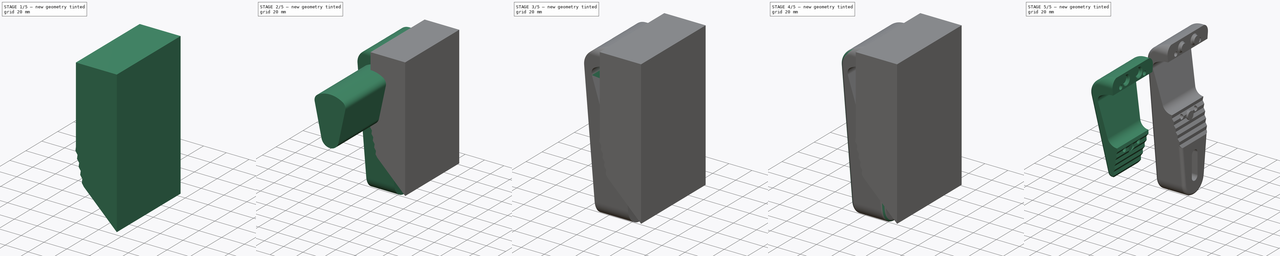
[diagram: build sequence overview — one tinted view per stage of 5, left to right]
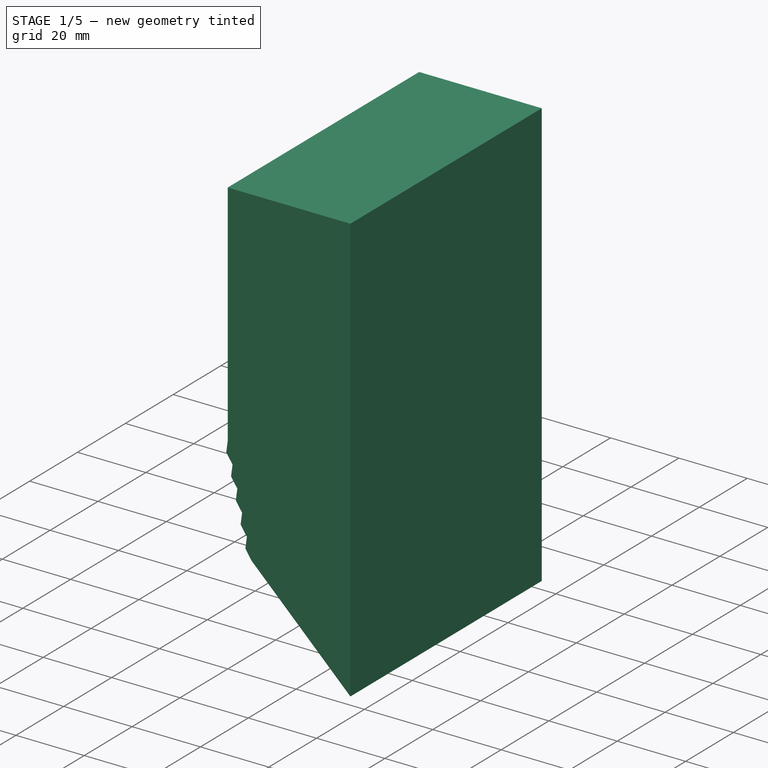
[diagram: stage 1 of 5 — iso view after this stage's code; geometry added in this stage tinted green]
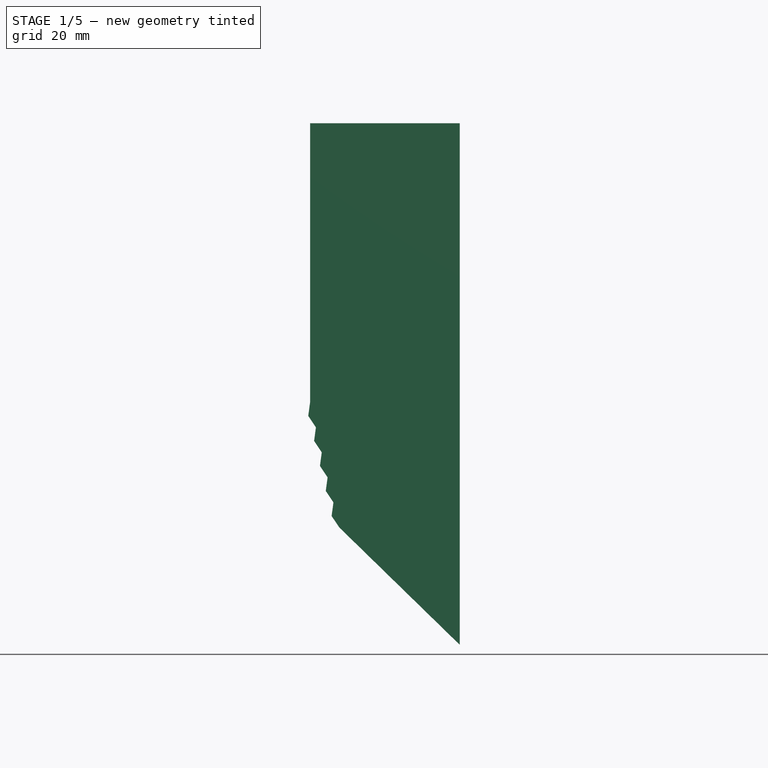
[diagram: stage 1 of 5 — front view after this stage's code; geometry added in this stage tinted green]
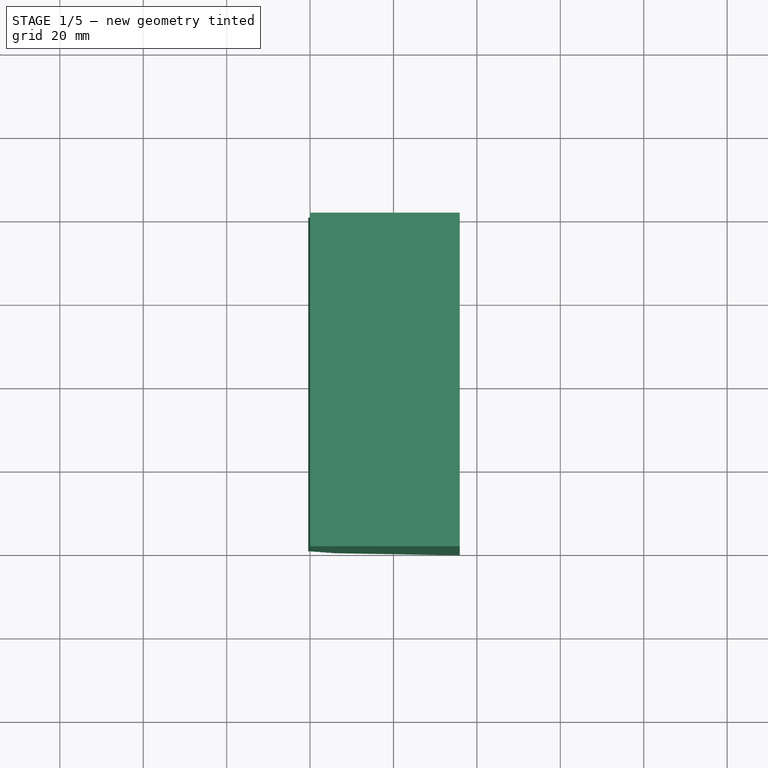
[diagram: stage 1 of 5 — top view after this stage's code; geometry added in this stage tinted green]
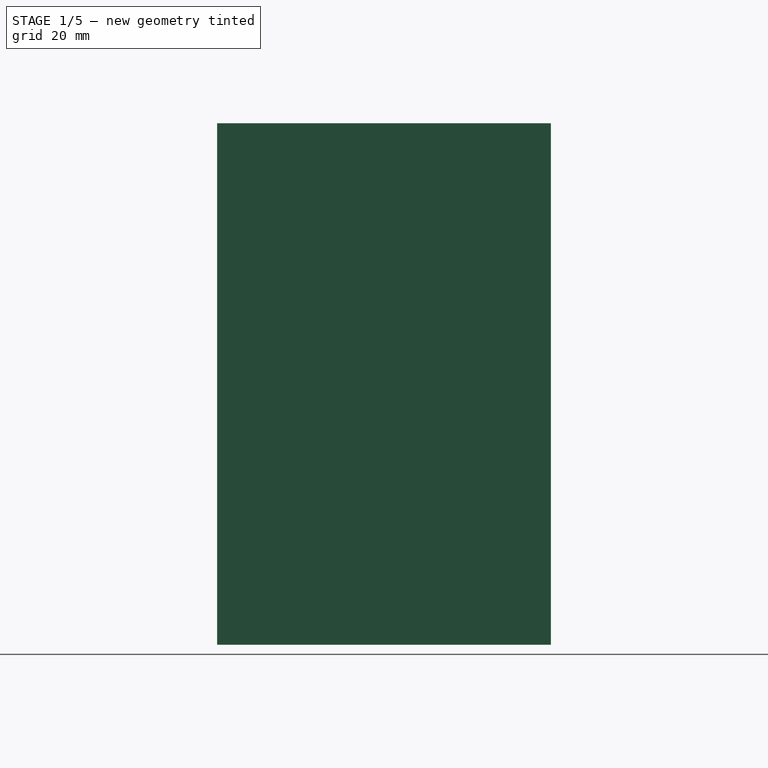
[diagram: stage 1 of 5 — right view after this stage's code; geometry added in this stage tinted green]
FCSTD DOCUMENT  (FreeCAD 0.20R28647 (Git))
Label: ello-center-wheel-mount
License: All rights reserved
LicenseURL: http://en.wikipedia.org/wiki/All_rights_reserved
objects: Sketcher::SketchObject×8, PartDesign::Pocket×5, PartDesign::Body×4, PartDesign::Pad×3, Part::FeaturePython×3, Part::Cut×1, PartDesign::FeatureBase×1, PartDesign::Fillet×1, PartDesign::Chamfer×1, App::DocumentObjectGroup×1
note: 37 computed .brp shape members not serialized (recipe doc carries the construction recipe); baked Part::Feature solids carry a one-line shape summary decoded from their .brp

FEATURE [PartDesign::Body] Body002  label="Mount"
  BaseFeature = -> Cut
  Group = -> [BaseFeature,Sketch003,Pocket001,Sketch004,Pocket002,Sketch005,Pocket003,Fillet]
  Origin = -> Origin002
  Tip = -> Fillet
FEATURE [Sketcher::SketchObject] Sketch006
  FullyConstrained = false
  MapMode = 5
  Placement = pos=(0,0,0) rot=(1,0,0;1.5708rad)
  Support = -> [XZ_Plane003]
  sketch-geometry (16):
    g0: LineSegment StartX=35.8843 StartY=66.9189 StartZ=0 EndX=0 EndY=66.9189 EndZ=0
    g1: LineSegment StartX=0 StartY=66.9189 StartZ=0 EndX=0 EndY=0 EndZ=0
    g2: LineSegment StartX=0 StartY=0 StartZ=0 EndX=7 EndY=-30 EndZ=0
    g3: LineSegment StartX=7 StartY=-30 StartZ=0 EndX=35.8843 EndY=-58.1385 EndZ=0
    g4: LineSegment StartX=35.8843 StartY=-58.1385 StartZ=0 EndX=35.8843 EndY=66.9189 EndZ=0
    g5: LineSegment StartX=0 StartY=0 StartZ=0 EndX=-0.43804 EndY=-3.26554 EndZ=0
    g6: LineSegment StartX=-0.43804 StartY=-3.26554 StartZ=0 EndX=1.4 EndY=-6 EndZ=0
    g7: LineSegment StartX=1.4 StartY=-6 StartZ=0 EndX=0.96196 EndY=-9.26554 EndZ=0
    g8: LineSegment StartX=0.96196 StartY=-9.26554 StartZ=0 EndX=2.8 EndY=-12 EndZ=0
    g9: LineSegment StartX=2.8 StartY=-12 StartZ=0 EndX=2.36196 EndY=-15.2655 EndZ=0
    g10: LineSegment StartX=2.36196 StartY=-15.2655 StartZ=0 EndX=4.2 EndY=-18 EndZ=0
    g11: LineSegment StartX=4.2 StartY=-18 StartZ=0 EndX=3.76196 EndY=-21.2655 EndZ=0
    g12: LineSegment StartX=3.76196 StartY=-21.2655 StartZ=0 EndX=5.6 EndY=-24 EndZ=0
    g13: LineSegment StartX=5.6 StartY=-24 StartZ=0 EndX=5.16196 EndY=-27.2655 EndZ=0
    g14: LineSegment StartX=5.69191 StartY=-29.5367 StartZ=0 EndX=-1.2 EndY=0 EndZ=0
    g15: LineSegment StartX=5.16196 StartY=-27.2655 StartZ=0 EndX=7 EndY=-30 EndZ=0
  constraints (43):
    c: PointOnObject(g0,g-2)
    c: Horizontal(g0)
    c: Coincident(g0,g1)
    c: Coincident(g1,g-1)
    c: Coincident(g1,g2)
    c: Coincident(g3,g4)
    c: Coincident(g4,g0)
    c: Vertical(g4)
    c: DistanceX(g2) = 7
    c: DistanceY(g2) = -30
    c: Coincident(g1,g5)
    c: Coincident(g5,g6)
    c: Coincident(g6,g7)
    c: Coincident(g7,g8)
    c: Coincident(g8,g9)
    c: Coincident(g9,g10)
    c: Coincident(g10,g11)
    c: Coincident(g11,g12)
    c: Coincident(g12,g13)
    c: Equal(g13,g12)
    c: Equal(g12,g11)
    c: Equal(g11,g10)
    c: Equal(g10,g9)
    c: Equal(g9,g8)
    c: Equal(g8,g7)
    c: Equal(g7,g6)
    c: Equal(g6,g5)
    c: Parallel(g2,g14)
    c: PointOnObject(g5,g14)
    c: PointOnObject(g7,g14)
    c: PointOnObject(g9,g14)
    c: PointOnObject(g11,g14)
    c: Coincident(g3,g2)
    c: Coincident(g15,g13)
    c: Coincident(g15,g3)
    c: PointOnObject(g13,g14)
    c: Equal(g13,g15)
    c: PointOnObject(g10,g2)
    c: PointOnObject(g12,g2)
    c: PointOnObject(g8,g2)
    c: PointOnObject(g6,g2)
    c: PointOnObject(g14,g-1)
    c: DistanceX(g14) = -1.2
FEATURE [PartDesign::Pad] Pad002  label="Profile001"
  Direction = (0,-1,2e-16)
  Length = 80
  Length2 = 10
  Midplane = true
  Placement = pos=(0,0,0) rot=(1,0,0;1.5708rad)
  Profile = -> Sketch006
  ReferenceAxis = -> Sketch006 [N_Axis]
  Type = 0
FEATURE [Sketcher::SketchObject] Sketch007
  FullyConstrained = true
  MapMode = 5
  Placement = pos=(0,0,0) rot=(0.57735,0.57735,0.57735;2.0944rad)
  Support = -> [YZ_Plane003]
  sketch-geometry (3):
    g0: Circle CenterX=-9 CenterY=57 CenterZ=0 NormalX=0 NormalY=0 NormalZ=1 AngleXU=0 Radius=4
    g1: Circle CenterX=9 CenterY=57 CenterZ=0 NormalX=0 NormalY=0 NormalZ=1 AngleXU=0 Radius=4
    g2: Circle CenterX=0 CenterY=-8 CenterZ=0 NormalX=0 NormalY=0 NormalZ=1 AngleXU=0 Radius=4
  constraints (8):
    c: Symmetric(g0,g1,g-2)
    c: Equal(g0,g1)
    c: Diameter(g0) = 8
    c: DistanceX(g1) = 9
    c: DistanceY(g1) = 57
    c: PointOnObject(g2,g-2)
    c: Equal(g2,g1)
    c: DistanceY(g2) = -8
FEATURE [PartDesign::Pocket] Pocket004  label="Index-pins"
  BaseFeature = -> Pad002
  Direction = (-1,2e-16,-3e-16)
  Length = 3
  Length2 = 5
  Placement = pos=(0,0,0) rot=(1,0,0;1.5708rad)
  Profile = -> Sketch007
  ReferenceAxis = -> Sketch007 [N_Axis]
  Reversed = true
  Type = 0
FEATURE [PartDesign::Chamfer] Chamfer
  Angle = 45
  Base = -> Pocket004 [Edge11,Edge12]
  BaseFeature = -> Pocket004
  ChamferType = 0
  FlipDirection = false
  Placement = pos=(0,0,0) rot=(1,0,0;1.5708rad)
  Size = 1
  Size2 = 1
  SupportTransform = false
  UseAllEdges = false
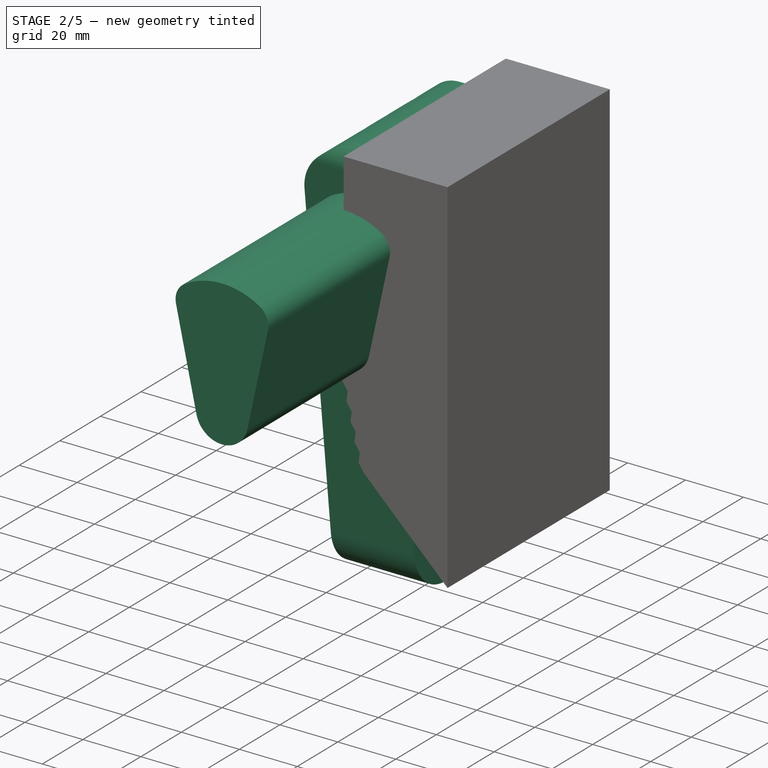
[diagram: stage 2 of 5 — iso view after this stage's code; geometry added in this stage tinted green]
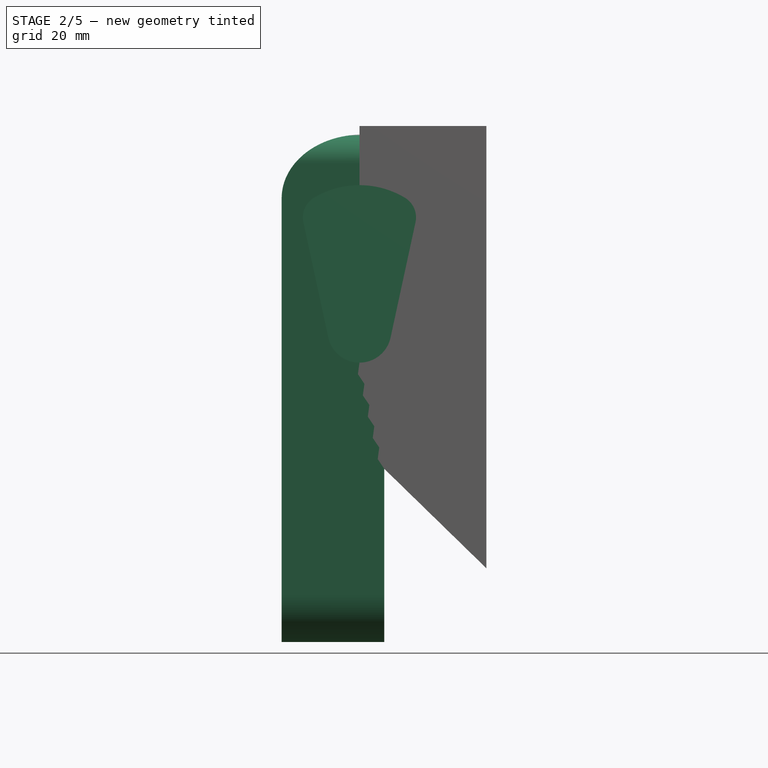
[diagram: stage 2 of 5 — front view after this stage's code; geometry added in this stage tinted green]
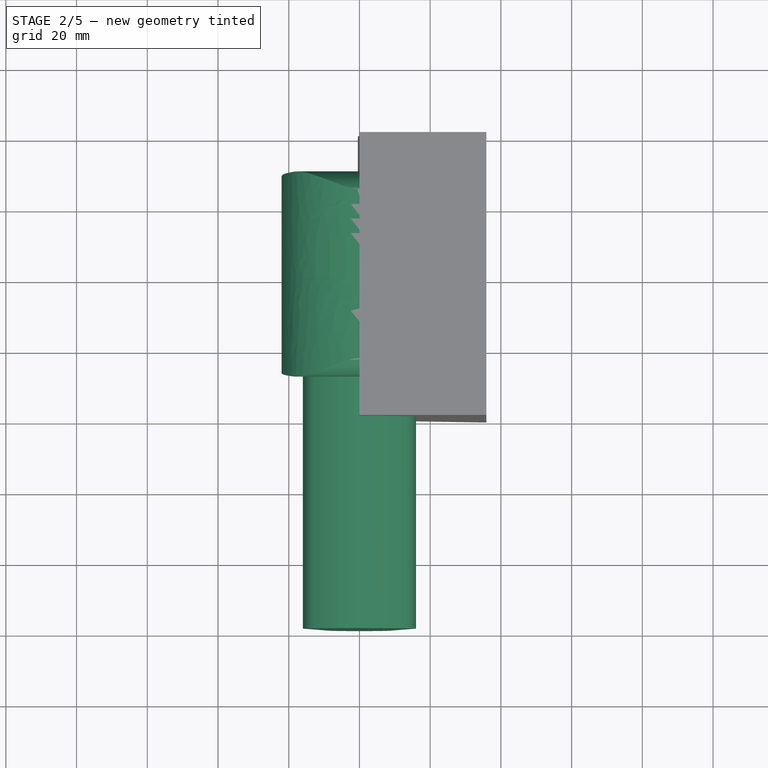
[diagram: stage 2 of 5 — top view after this stage's code; geometry added in this stage tinted green]
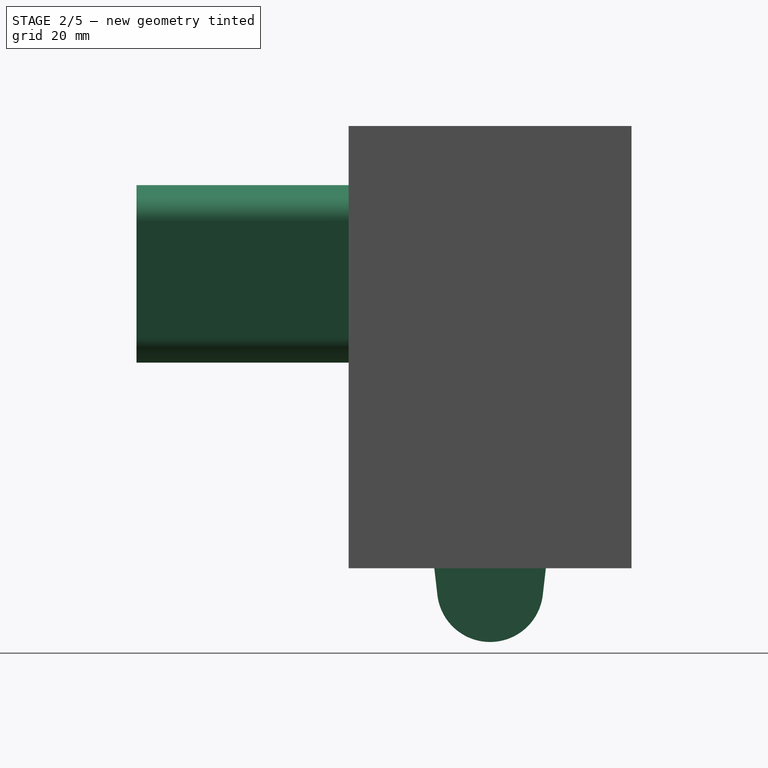
[diagram: stage 2 of 5 — right view after this stage's code; geometry added in this stage tinted green]
FEATURE [Sketcher::SketchObject] Sketch  label="beam-profile"
  FullyConstrained = true
  MapMode = 5
  Placement = pos=(0,0,0) rot=(1,0,0;1.5708rad)
  Support = -> [XZ_Plane]
  sketch-geometry (12):
    g0: LineSegment StartX=-15.8529 StartY=39.6995 StartZ=0 EndX=-8.79633 EndY=7.09615 EndZ=0
    g1: LineSegment StartX=8.79633 StartY=7.09615 StartZ=0 EndX=15.8529 EndY=39.6995 EndZ=0
    g2: GeomPoint X=0 Y=50.2 Z=0
    g3: GeomPoint X=0 Y=0 Z=0
    g4: ArcOfCircle CenterX=-9.5 CenterY=41.0745 CenterZ=0 NormalX=0 NormalY=0 NormalZ=1 AngleXU=0 Radius=6.5 StartAngle=2.11007 EndAngle=3.35474
    g5: ArcOfCircle CenterX=9.5 CenterY=41.0745 CenterZ=0 NormalX=0 NormalY=0 NormalZ=1 AngleXU=0 Radius=6.5 StartAngle=6.07004 EndAngle=7.31471
    g6: ArcOfCircle CenterX=0 CenterY=25.2 CenterZ=0 NormalX=0 NormalY=0 NormalZ=1 AngleXU=0 Radius=25 StartAngle=1.03152 EndAngle=2.11007
    g7: LineSegment StartX=-16 StartY=50.2 StartZ=0 EndX=16 EndY=50.2 EndZ=0
    g8: LineSegment StartX=16 StartY=50.2 StartZ=0 EndX=16 EndY=0 EndZ=0
    g9: LineSegment StartX=16 StartY=0 StartZ=0 EndX=-16 EndY=0 EndZ=0
    g10: LineSegment StartX=-16 StartY=0 StartZ=0 EndX=-16 EndY=50.2 EndZ=0
    g11: ArcOfCircle CenterX=0 CenterY=9 CenterZ=0 NormalX=0 NormalY=0 NormalZ=1 AngleXU=0 Radius=9 StartAngle=3.35474 EndAngle=6.07004
  constraints (32):
    c: DistanceY(g3,g2) = 50.2
    c: Angle(g1,g0) = 0.426299
    c: DistanceX(g0,g1) = 17.5927
    c: Coincident(g3,g-1)
    c: PointOnObject(g6,g-2)
    c: Symmetric(g4,g5,g-2)
    c: Tangent(g4,g0) = -1.5708
    c: Tangent(g6,g4) = -1.5708
    c: PointOnObject(g2,g6)
    c: Coincident(g7,g8)
    c: Coincident(g8,g9)
    c: Coincident(g9,g10)
    c: Coincident(g10,g7)
    c: Horizontal(g7)
    c: Horizontal(g9)
    c: Vertical(g8)
    c: Vertical(g10)
    c: PointOnObject(g8,g-1)
    c: PointOnObject(g2,g7)
    c: Tangent(g5,g8)
    c: Tangent(g10,g4)
    c: DistanceX(g7,g7) = 32
    c: Tangent(g6,g5) = -1.5708
    c: Tangent(g5,g1) = -1.5708
    c: Radius(g5) = 6.5
    c: Radius(g6) = 25
    c: PointOnObject(g11,g-2)
    c: Tangent(g11,g1) = -1.5708
    c: Tangent(g11,g0) = -1.5708
    c: PointOnObject(g3,g11)
    c: PointOnObject(g2,g-2)
    c: Radius(g11) = 9
FEATURE [PartDesign::Pad] Pad
  Direction = (0,-1,-2e-16)
  Length = 100
  Length2 = 10
  Placement = pos=(0,0,0) rot=(1,0,0;1.5708rad)
  Profile = -> Sketch
  ReferenceAxis = -> Sketch [N_Axis]
  Type = 0
FEATURE [PartDesign::Body] Body  label="Beam"
  Group = -> [Sketch,Pad]
  Origin = -> Origin
  Placement = pos=(0,50,0) rot=(1,0,0;0rad)
  Tip = -> Pad
FEATURE [Sketcher::SketchObject] Sketch001
  FullyConstrained = false
  MapMode = 5
  Placement = pos=(0,0,0) rot=(1,0,0;1.5708rad)
  Support = -> [XZ_Plane001]
  sketch-geometry (16):
    g0: LineSegment StartX=0 StartY=-54 StartZ=0 EndX=-22 EndY=-54 EndZ=0
    g1: LineSegment StartX=-22 StartY=-80 StartZ=0 EndX=-22 EndY=46.5 EndZ=0
    g2: LineSegment StartX=23.3234 StartY=44.2618 StartZ=0 EndX=12.096 EndY=-26.6257 EndZ=0
    g3: LineSegment StartX=8.1452 StartY=-30 StartZ=0 EndX=7 EndY=-30 EndZ=0
    g4: LineSegment StartX=7 StartY=-30 StartZ=0 EndX=7 EndY=-80 EndZ=0
    g5: LineSegment StartX=7 StartY=-80 StartZ=0 EndX=-22 EndY=-80 EndZ=0
    g6: ArcOfEllipse CenterX=0.75 CenterY=46.5 CenterZ=0 NormalX=0 NormalY=0 NormalZ=1 MajorRadius=22.75 MinorRadius=18 AngleXU=0 StartAngle=6.15852 EndAngle=9.42478
    g7: LineSegment StartX=23.5 StartY=46.5 StartZ=0 EndX=-22 EndY=46.5 EndZ=0
    g8: LineSegment StartX=0.75 StartY=64.5 StartZ=0 EndX=0.75 EndY=28.5 EndZ=0
    g9: GeomPoint X=14.6627 Y=46.5 Z=0
    g10: GeomPoint X=-13.1627 Y=46.5 Z=0
    g11: ArcOfCircle CenterX=8.1452 CenterY=-26 CenterZ=0 NormalX=0 NormalY=0 NormalZ=1 AngleXU=0 Radius=4 StartAngle=4.71239 EndAngle=6.12611
    g12: GeomPoint X=11.5615 Y=-30 Z=0
    g13: LineSegment StartX=22.2444 StartY=37.4493 StartZ=0 EndX=16.3183 EndY=38.3879 EndZ=0
    g14: LineSegment StartX=0 StartY=64.4902 StartZ=0 EndX=0 EndY=58.4902 EndZ=0
    g15: LineSegment StartX=-22 StartY=41.042 StartZ=0 EndX=-16 EndY=41.042 EndZ=0
  constraints (38):
    c: PointOnObject(g0,g-2)
    c: Horizontal(g0)
    c: DistanceX(g0,g0) = 22
    c: DistanceY(g0) = -54
    c: Vertical(g1)
    c: Horizontal(g3)
    c: Coincident(g3,g4)
    c: Vertical(g4)
    c: Coincident(g4,g5)
    c: Coincident(g5,g1)
    c: Horizontal(g5)
    c: InternalAlignment(g7-g10 -> g6) x4
    c: Horizontal(g7)
    c: Tangent(g1,g6) = 1.5708
    c: PointOnObject(g0,g1)
    c: Tangent(g6,g2) = 1.5708
    c: PointOnObject(g12,g2)
    c: PointOnObject(g12,g3)
    c: Tangent(g2,g11) = 1.5708
    c: Tangent(g3,g11) = 1.5708
    c: Angle(g2) = -1.72788
    c: PointOnObject(g13,g2)
    c: Perpendicular(g13,g2)
    c: Distance(g13) = 6
    c: PointOnObject(g14,g6)
    c: Vertical(g14)
    c: Equal(g14,g13)
    c: PointOnObject(g15,g1)
    c: Horizontal(g15)
    c: Equal(g15,g14)
    c: Radius(g11) = 4
    c: DistanceY(g3) = -30
    c: DistanceX(g6) = 0.75
    c: DistanceY(g6) = 46.5
    c: DistanceY(g8,g8) = 36
    c: DistanceY(g4) = -80
    c: PointOnObject(g14,g-2)
    c: DistanceX(g3) = 7
FEATURE [PartDesign::Pad] Pad001  label="Profile"
  Direction = (0,-1,-2e-16)
  Length = 80
  Length2 = 10
  Midplane = true
  Placement = pos=(0,0,0) rot=(1,0,0;1.5708rad)
  Profile = -> Sketch001
  ReferenceAxis = -> Sketch001 [N_Axis]
  Type = 0
FEATURE [Sketcher::SketchObject] Sketch002
  FullyConstrained = false
  MapMode = 5
  Placement = pos=(0,0,0) rot=(0.57735,0.57735,0.57735;2.0944rad)
  Support = -> [YZ_Plane001]
  sketch-geometry (17):
    g0: LineSegment StartX=-63.8896 StartY=86.8997 StartZ=0 EndX=68.5998 EndY=86.8997 EndZ=0
    g1: LineSegment StartX=68.5998 StartY=86.8997 StartZ=0 EndX=68.5998 EndY=-100.679 EndZ=0
    g2: LineSegment StartX=68.5998 StartY=-100.679 StartZ=0 EndX=-63.8896 EndY=-100.679 EndZ=0
    g3: LineSegment StartX=-63.8896 StartY=-100.679 StartZ=0 EndX=-63.8896 EndY=86.8997 EndZ=0
    g4: LineSegment StartX=21.0228 StartY=65 StartZ=0 EndX=-21.0228 EndY=65 EndZ=0
    g5: LineSegment StartX=-28.9699 StartY=56.0821 StartZ=0 EndX=-14.9009 EndY=-65.7211 EndZ=0
    g6: LineSegment StartX=14.9009 StartY=-65.7211 StartZ=0 EndX=28.9699 EndY=56.0821 EndZ=0
    g7: ArcOfCircle CenterX=21.0228 CenterY=57 CenterZ=0 NormalX=0 NormalY=0 NormalZ=1 AngleXU=0 Radius=8 StartAngle=6.16819 EndAngle=7.85398
    g8: GeomPoint X=30 Y=65 Z=0
    g9: ArcOfCircle CenterX=-21.0228 CenterY=57 CenterZ=0 NormalX=0 NormalY=0 NormalZ=1 AngleXU=0 Radius=8 StartAngle=1.5708 EndAngle=3.25659
    g10: GeomPoint X=-30 Y=65 Z=0
    g11: ArcOfCircle CenterX=9e-16 CenterY=-64 CenterZ=0 NormalX=0 NormalY=0 NormalZ=1 AngleXU=0 Radius=15 StartAngle=3.25659 EndAngle=6.16819
    g12: GeomPoint X=0 Y=-194.727 Z=0
    g13: ArcOfCircle CenterX=0 CenterY=-44 CenterZ=0 NormalX=0 NormalY=0 NormalZ=1 AngleXU=0 Radius=4 StartAngle=0 EndAngle=3.14159
    g14: ArcOfCircle CenterX=9e-16 CenterY=-64 CenterZ=0 NormalX=0 NormalY=0 NormalZ=1 AngleXU=0 Radius=4 StartAngle=3.14159 EndAngle=6.28319
    g15: LineSegment StartX=-4 StartY=-44 StartZ=0 EndX=-4 EndY=-64 EndZ=0
    g16: LineSegment StartX=4 StartY=-64 StartZ=0 EndX=4 EndY=-44 EndZ=0
  constraints (37):
    c: Coincident(g0,g1)
    c: Coincident(g1,g2)
    c: Coincident(g2,g3)
    c: Coincident(g3,g0)
    c: Horizontal(g0)
    c: Horizontal(g2)
    c: Vertical(g1)
    c: Vertical(g3)
    c: Horizontal(g4)
    c: PointOnObject(g12,g-2)
    c: DistanceY(g8) = 65
    c: DistanceX(g10,g8) = 60
    c: PointOnObject(g8,g4)
    c: PointOnObject(g8,g6)
    c: Tangent(g4,g7) = -1.5708
    c: Tangent(g6,g7) = -1.5708
    c: PointOnObject(g10,g4)
    c: PointOnObject(g10,g5)
    c: Tangent(g4,g9) = -1.5708
    c: Tangent(g5,g9) = -1.5708
    c: PointOnObject(g12,g5)
    c: PointOnObject(g12,g6)
    c: Tangent(g5,g11) = -1.5708
    c: Tangent(g6,g11) = -1.5708
    c: Radius(g7) = 8
    c: Symmetric(g9,g7,g-2)
    c: Tangent(g13,g15) = -1.5708
    c: Tangent(g15,g14) = -1.5708
    c: Tangent(g14,g16) = -1.5708
    c: Tangent(g16,g13) = -1.5708
    c: Equal(g13,g14)
    c: PointOnObject(g13,g-2)
    c: Diameter(g13) = 8
    c: DistanceY(g16,g16) = 20
    c: DistanceY(g13) = -44
    c: Coincident(g11,g14)
    c: Diameter(g11) = 30
FEATURE [PartDesign::Pocket] Pocket  label="wedge-shape"
  BaseFeature = -> Pad001
  Direction = (-1,2e-16,-3e-16)
  Length = 60
  Length2 = 5
  Midplane = true
  Placement = pos=(0,0,0) rot=(1,0,0;1.5708rad)
  Profile = -> Sketch002
  ReferenceAxis = -> Sketch002 [N_Axis]
  Type = 0
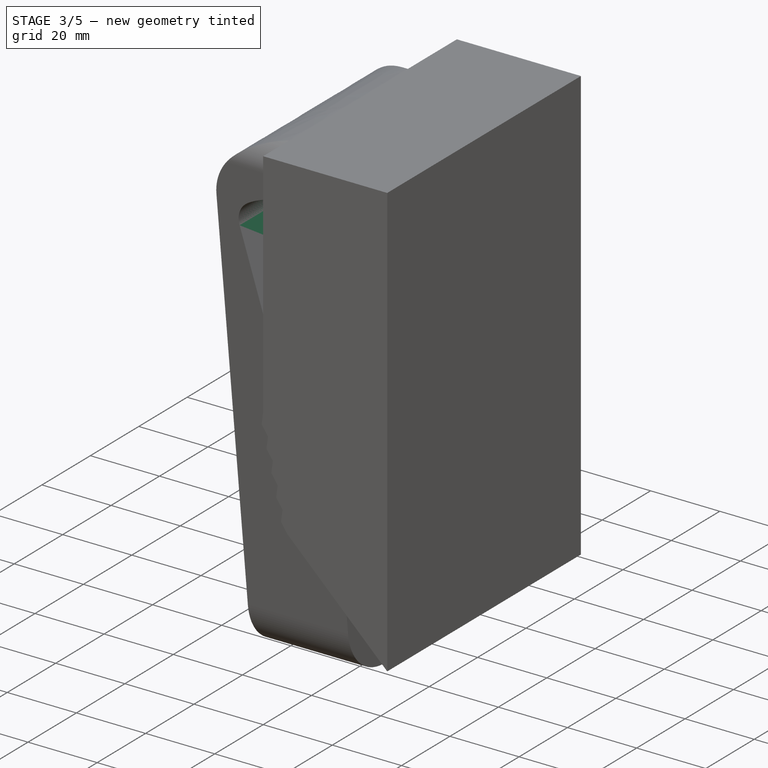
[diagram: stage 3 of 5 — iso view after this stage's code; geometry added in this stage tinted green]
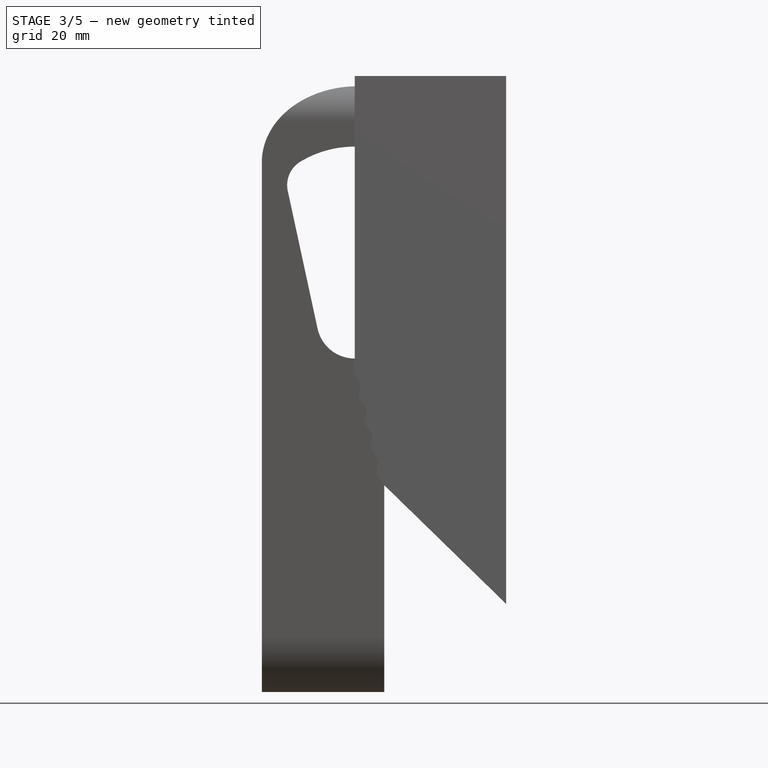
[diagram: stage 3 of 5 — front view after this stage's code; geometry added in this stage tinted green]
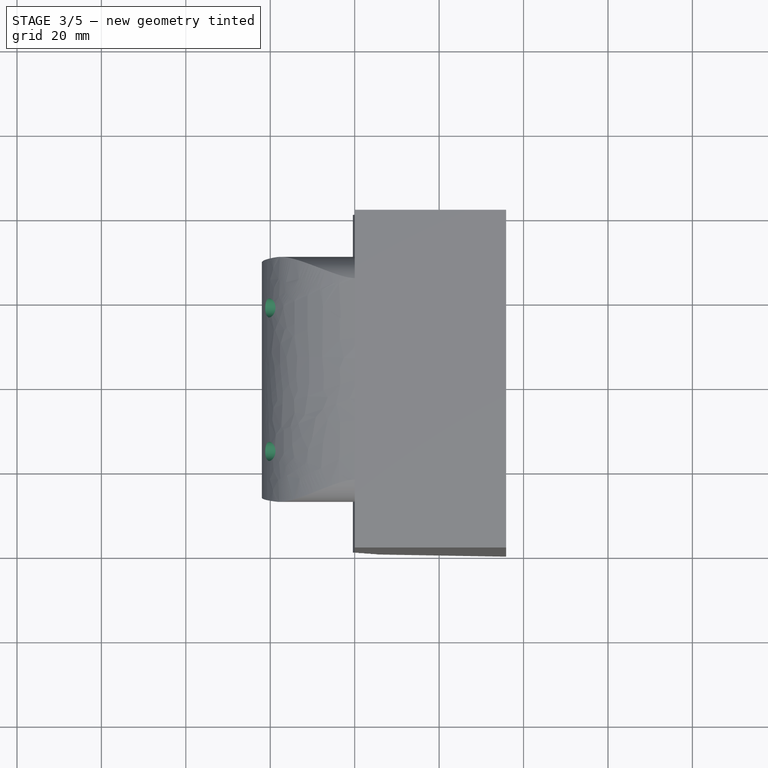
[diagram: stage 3 of 5 — top view after this stage's code; geometry added in this stage tinted green]
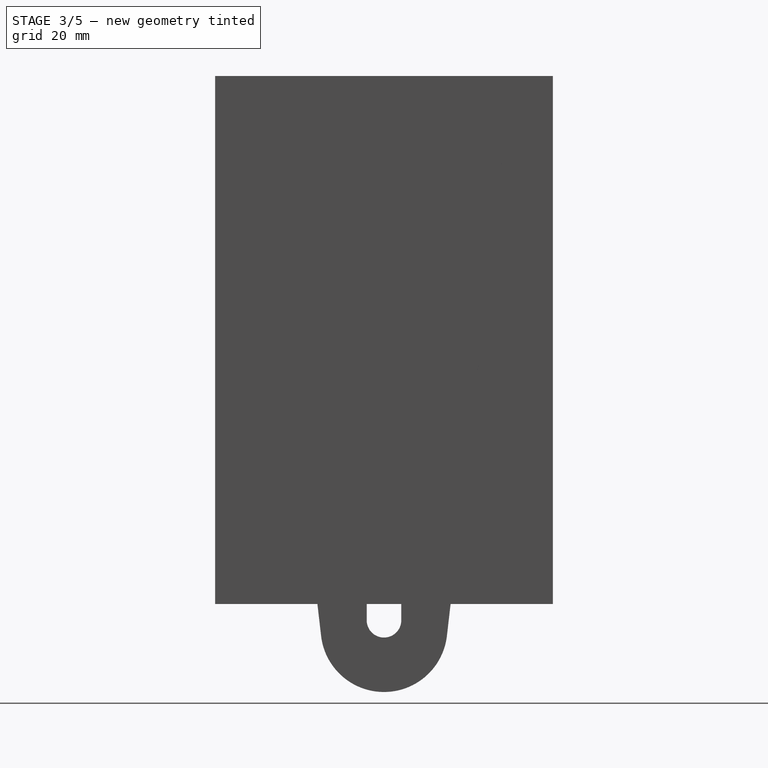
[diagram: stage 3 of 5 — right view after this stage's code; geometry added in this stage tinted green]
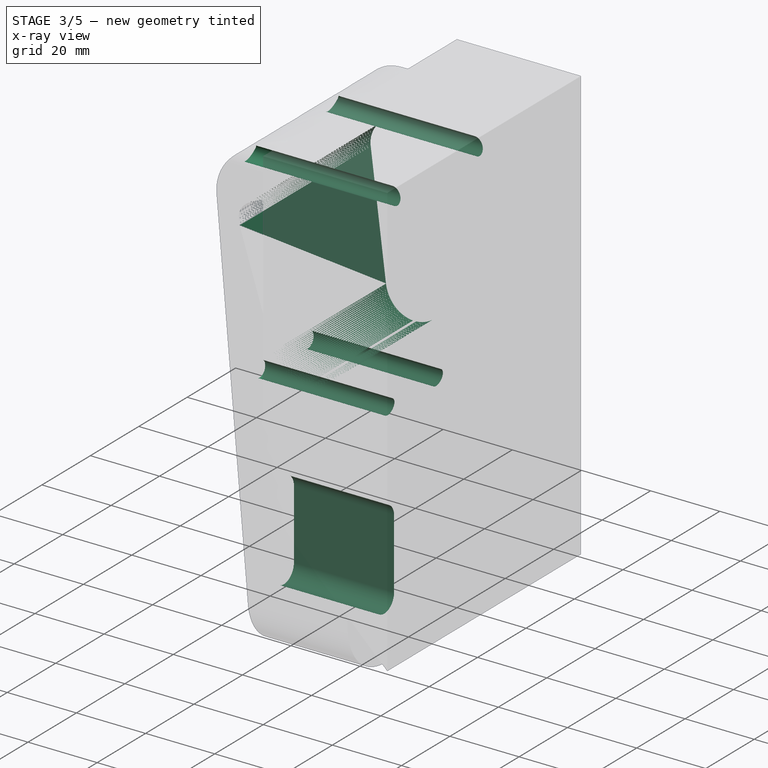
[diagram: stage 3 of 5 — x-ray composite at the iso view; earlier geometry ghosted, this stage's added geometry solid]
FEATURE [PartDesign::Body] Body001
  Group = -> [Sketch001,Pad001,Sketch002,Pocket]
  Origin = -> Origin001
  Tip = -> Pocket
FEATURE [Part::Cut] Cut
  Base = -> Body001
  Tool = -> Body
FEATURE [PartDesign::FeatureBase] BaseFeature
  BaseFeature = -> Cut
FEATURE [Sketcher::SketchObject] Sketch003
  FullyConstrained = true
  MapMode = 5
  Placement = pos=(0,0,0) rot=(0.57735,0.57735,0.57735;2.0944rad)
  Support = -> [YZ_Plane002]
  sketch-geometry (8):
    g0: ArcOfCircle CenterX=0 CenterY=-42 CenterZ=0 NormalX=0 NormalY=0 NormalZ=1 AngleXU=0 Radius=4.1 StartAngle=0 EndAngle=3.14159
    g1: ArcOfCircle CenterX=0 CenterY=-62 CenterZ=0 NormalX=0 NormalY=0 NormalZ=1 AngleXU=0 Radius=4.1 StartAngle=3.14159 EndAngle=6.28319
    g2: LineSegment StartX=-4.1 StartY=-42 StartZ=0 EndX=-4.1 EndY=-62 EndZ=0
    g3: LineSegment StartX=4.1 StartY=-62 StartZ=0 EndX=4.1 EndY=-42 EndZ=0
    g4: Circle CenterX=-10 CenterY=-6 CenterZ=0 NormalX=0 NormalY=0 NormalZ=1 AngleXU=0 Radius=2.25
    g5: Circle CenterX=10 CenterY=-6 CenterZ=0 NormalX=0 NormalY=0 NormalZ=1 AngleXU=0 Radius=2.25
    g6: Circle CenterX=-17 CenterY=53.5 CenterZ=0 NormalX=0 NormalY=0 NormalZ=1 AngleXU=0 Radius=2.25
    g7: Circle CenterX=17 CenterY=53.5 CenterZ=0 NormalX=0 NormalY=0 NormalZ=1 AngleXU=0 Radius=2.25
  constraints (20):
    c: Tangent(g0,g2) = -1.5708
    c: Tangent(g2,g1) = -1.5708
    c: Tangent(g1,g3) = -1.5708
    c: Tangent(g3,g0) = -1.5708
    c: Equal(g0,g1)
    c: PointOnObject(g0,g-2)
    c: PointOnObject(g1,g-2)
    c: DistanceY(g3,g3) = 20
    c: Diameter(g1) = 8.2
    c: DistanceY(g0) = -42
    c: Equal(g6,g7)
    c: Equal(g7,g5)
    c: Equal(g5,g4)
    c: Symmetric(g4,g5,g-2)
    c: Symmetric(g7,g6,g-2)
    c: Diameter(g7) = 4.5
    c: DistanceY(g7) = 53.5
    c: DistanceX(g6,g7) = 34
    c: DistanceX(g4,g5) = 20
    c: DistanceY(g5) = -6
FEATURE [PartDesign::Pocket] Pocket001  label="Holes"
  BaseFeature = -> BaseFeature
  Direction = (-1,2e-16,-3e-16)
  Length = 5
  Length2 = 5
  Midplane = true
  Profile = -> Sketch003
  ReferenceAxis = -> Sketch003 [N_Axis]
  Type = 1
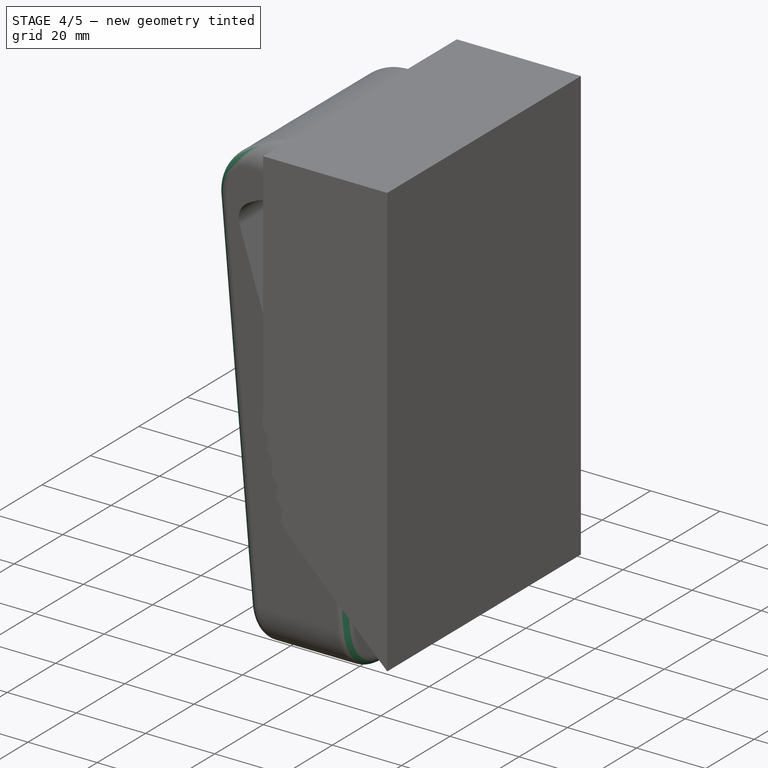
[diagram: stage 4 of 5 — iso view after this stage's code; geometry added in this stage tinted green]
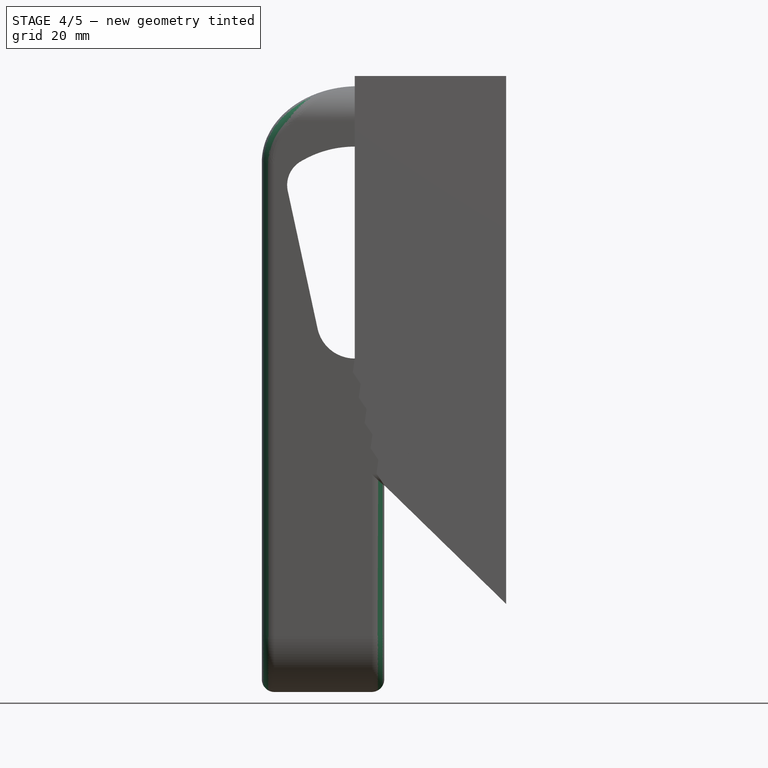
[diagram: stage 4 of 5 — front view after this stage's code; geometry added in this stage tinted green]
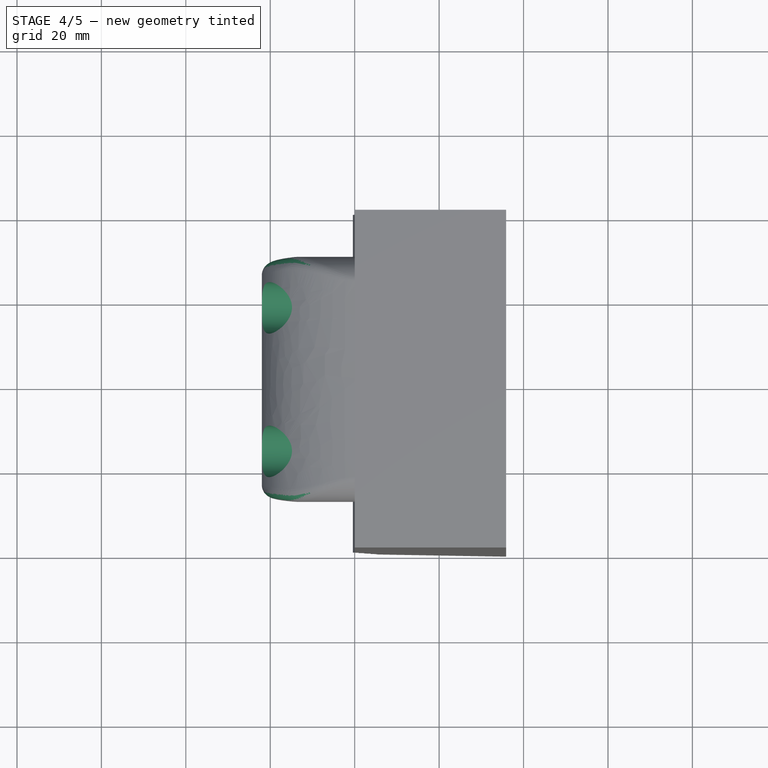
[diagram: stage 4 of 5 — top view after this stage's code; geometry added in this stage tinted green]
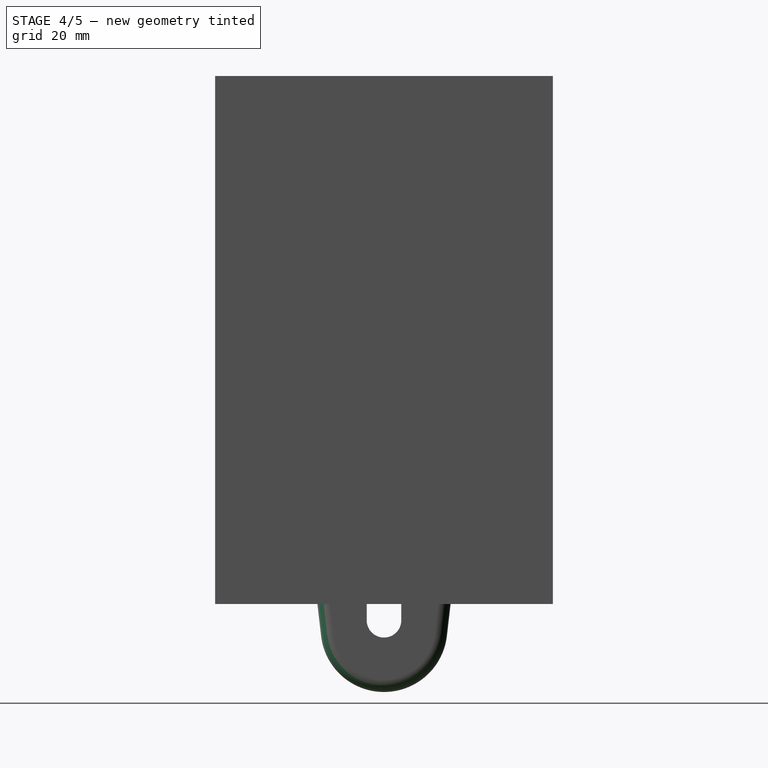
[diagram: stage 4 of 5 — right view after this stage's code; geometry added in this stage tinted green]
FEATURE [Sketcher::SketchObject] Sketch004
  AttachmentOffset = pos=(0,0,-14) rot=(0,0,1;0rad)
  FullyConstrained = true
  MapMode = 5
  Placement = pos=(-14,3.1e-15,-3.1e-15) rot=(0.57735,0.57735,0.57735;2.0944rad)
  Support = -> [YZ_Plane002]
  expr: Constraints[6] = Sketch003.Constraints[16]
  expr: Constraints[7] = Sketch003.Constraints[17]
  expr: Constraints[8] = Sketch003.Constraints[18]
  expr: Constraints[9] = Sketch003.Constraints[19]
  sketch-geometry (4):
    g0: Circle CenterX=-10 CenterY=-6 CenterZ=0 NormalX=0 NormalY=0 NormalZ=1 AngleXU=0 Radius=6.1
    g1: Circle CenterX=10 CenterY=-6 CenterZ=0 NormalX=0 NormalY=0 NormalZ=1 AngleXU=0 Radius=6.1
    g2: Circle CenterX=-17 CenterY=53.5 CenterZ=0 NormalX=0 NormalY=0 NormalZ=1 AngleXU=0 Radius=6.1
    g3: Circle CenterX=17 CenterY=53.5 CenterZ=0 NormalX=0 NormalY=0 NormalZ=1 AngleXU=0 Radius=6.1
  constraints (10):
    c: Equal(g2,g3)
    c: Equal(g3,g1)
    c: Equal(g1,g0)
    c: Symmetric(g0,g1,g-2)
    c: Symmetric(g3,g2,g-2)
    c: Diameter(g3) = 12.2
    c: DistanceY(g3) = 53.5
    c: DistanceX(g2,g3) = 34
    c: DistanceX(g0,g1) = 20
    c: DistanceY(g1) = -6
FEATURE [PartDesign::Pocket] Pocket002  label="Countersink-outer"
  BaseFeature = -> Pocket001
  Direction = (-1,2e-16,-3e-16)
  Length = 5
  Length2 = 5
  Profile = -> Sketch004
  ReferenceAxis = -> Sketch004 [N_Axis]
  Type = 1
FEATURE [Sketcher::SketchObject] Sketch005
  AttachmentOffset = pos=(0,0,14) rot=(0,0,1;0rad)
  FullyConstrained = true
  MapMode = 5
  Placement = pos=(14,-3.1e-15,3.1e-15) rot=(0.57735,0.57735,0.57735;2.0944rad)
  Support = -> [YZ_Plane002]
  expr: Constraints[6] = Sketch003.Constraints[16]
  expr: Constraints[7] = Sketch003.Constraints[17]
  expr: Constraints[8] = Sketch003.Constraints[18]
  expr: Constraints[9] = Sketch003.Constraints[19]
  sketch-geometry (4):
    g0: Circle CenterX=-10 CenterY=-6 CenterZ=0 NormalX=0 NormalY=0 NormalZ=1 AngleXU=0 Radius=6.1
    g1: Circle CenterX=10 CenterY=-6 CenterZ=0 NormalX=0 NormalY=0 NormalZ=1 AngleXU=0 Radius=6.1
    g2: Circle CenterX=-17 CenterY=53.5 CenterZ=0 NormalX=0 NormalY=0 NormalZ=1 AngleXU=0 Radius=6.1
    g3: Circle CenterX=17 CenterY=53.5 CenterZ=0 NormalX=0 NormalY=0 NormalZ=1 AngleXU=0 Radius=6.1
  constraints (10):
    c: Equal(g2,g3)
    c: Equal(g3,g1)
    c: Equal(g1,g0)
    c: Symmetric(g0,g1,g-2)
    c: Symmetric(g3,g2,g-2)
    c: Diameter(g3) = 12.2
    c: DistanceY(g3) = 53.5
    c: DistanceX(g2,g3) = 34
    c: DistanceX(g0,g1) = 20
    c: DistanceY(g1) = -6
FEATURE [PartDesign::Pocket] Pocket003  label="Countersink-inner"
  BaseFeature = -> Pocket002
  Direction = (-1,2e-16,-3e-16)
  Length = 5
  Length2 = 5
  Profile = -> Sketch005
  ReferenceAxis = -> Sketch005 [N_Axis]
  Reversed = true
  Type = 1
FEATURE [PartDesign::Fillet] Fillet
  Base = -> Pocket003 [Edge28,Edge20]
  BaseFeature = -> Pocket003
  Radius = 3
  SupportTransform = false
  UseAllEdges = false
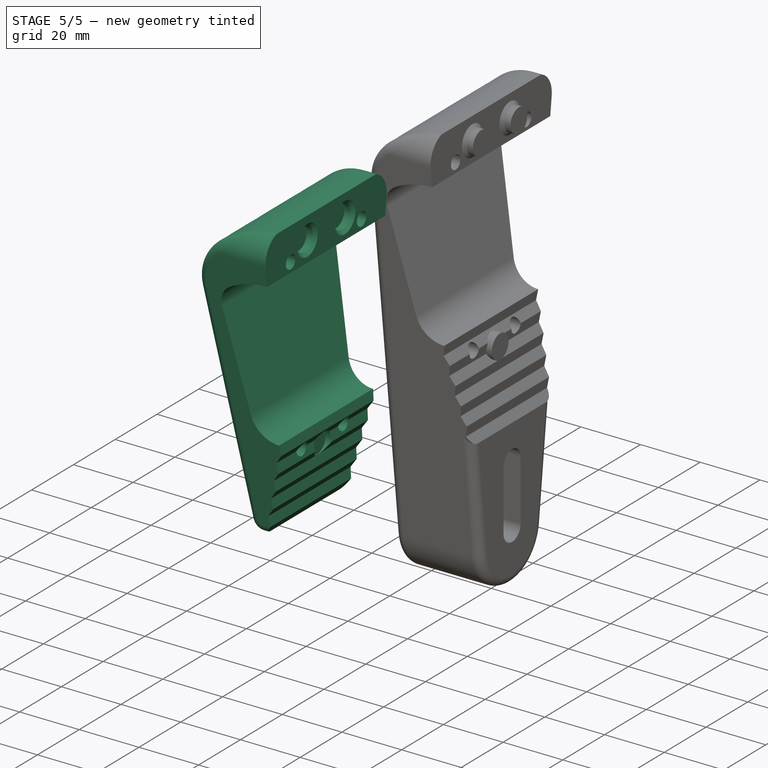
[diagram: stage 5 of 5 — iso view after this stage's code; geometry added in this stage tinted green]
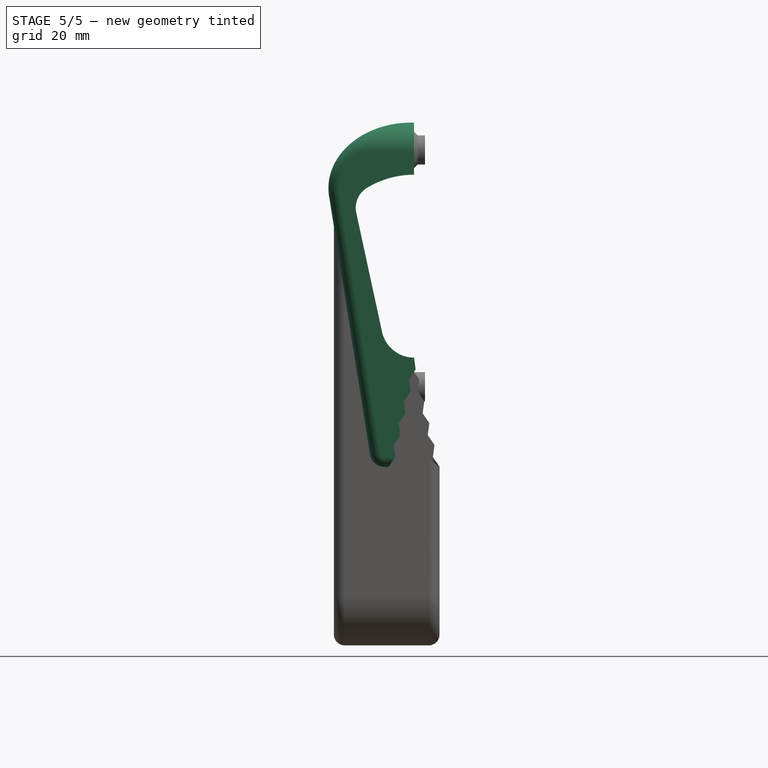
[diagram: stage 5 of 5 — front view after this stage's code; geometry added in this stage tinted green]
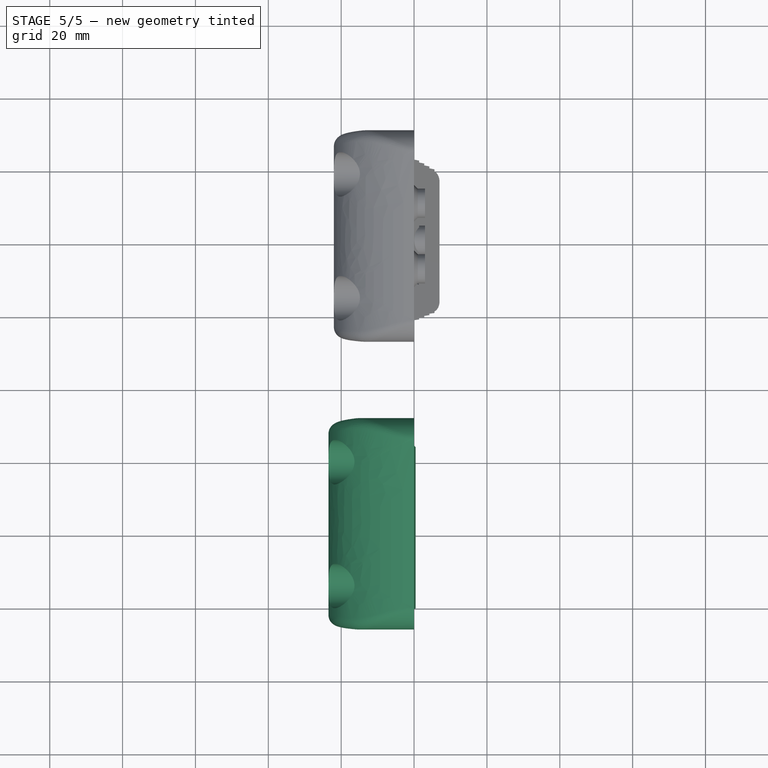
[diagram: stage 5 of 5 — top view after this stage's code; geometry added in this stage tinted green]
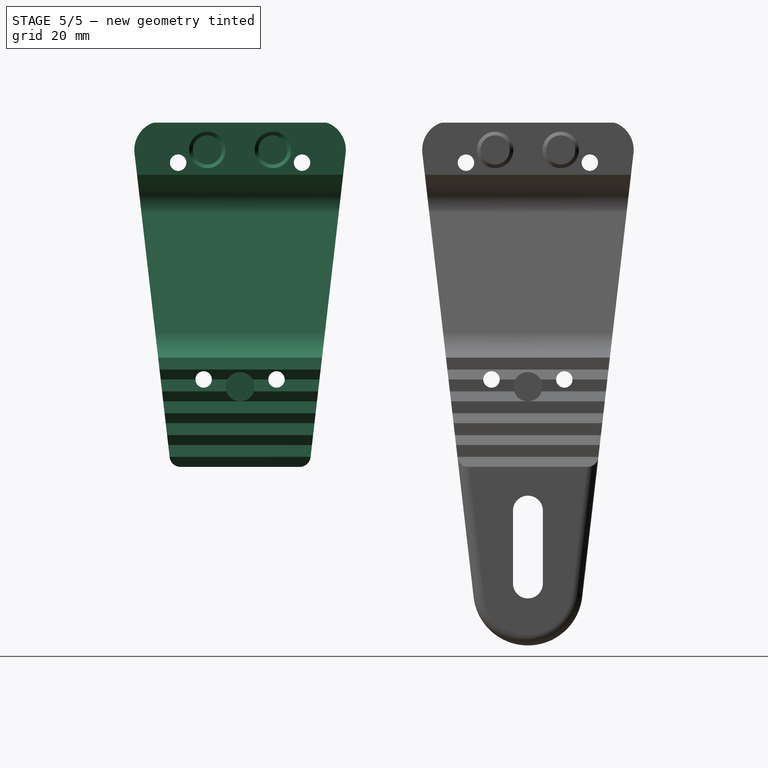
[diagram: stage 5 of 5 — right view after this stage's code; geometry added in this stage tinted green]
FEATURE [PartDesign::Body] Body003  label="Slicer"
  Group = -> [Sketch006,Pad002,Sketch007,Pocket004,Chamfer]
  Origin = -> Origin003
  Tip = -> Chamfer
FEATURE [Part::FeaturePython] Slice  # WARN: FeaturePython — macro-defined, semantics opaque (R4)
  Base = -> Body002
  Mode = 1
  Tolerance = 0
  Tools = -> [Body003]
FEATURE [Part::FeaturePython] Slice_child0  label="Slice.0"  # WARN: FeaturePython — macro-defined, semantics opaque (R4)
  Base = -> Slice
  FilterType = 1
  Invert = false
  OverrideMaxVal = 0
  WindowFrom = 80
  WindowTo = 100
  items = 0
FEATURE [Part::FeaturePython] Slice_child1  label="Slice.1"  # WARN: FeaturePython — macro-defined, semantics opaque (R4)
  Base = -> Slice
  FilterType = 1
  Invert = false
  OverrideMaxVal = 0
  Placement = pos=(-1e-14,-79,0) rot=(0,0,1;3.14159rad)
  WindowFrom = 80
  WindowTo = 100
  items = 1
FEATURE [App::DocumentObjectGroup] GrExplode_Slice  label="Exploded Slice"
  Group = -> [Slice_child0,Slice_child1]
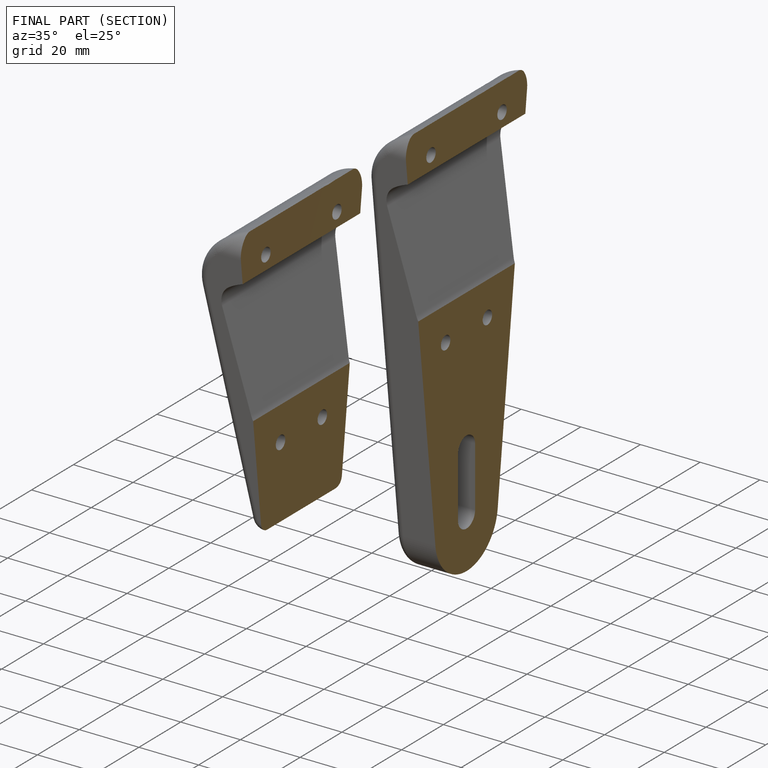
[diagram: finished part — half-section view (interior)]
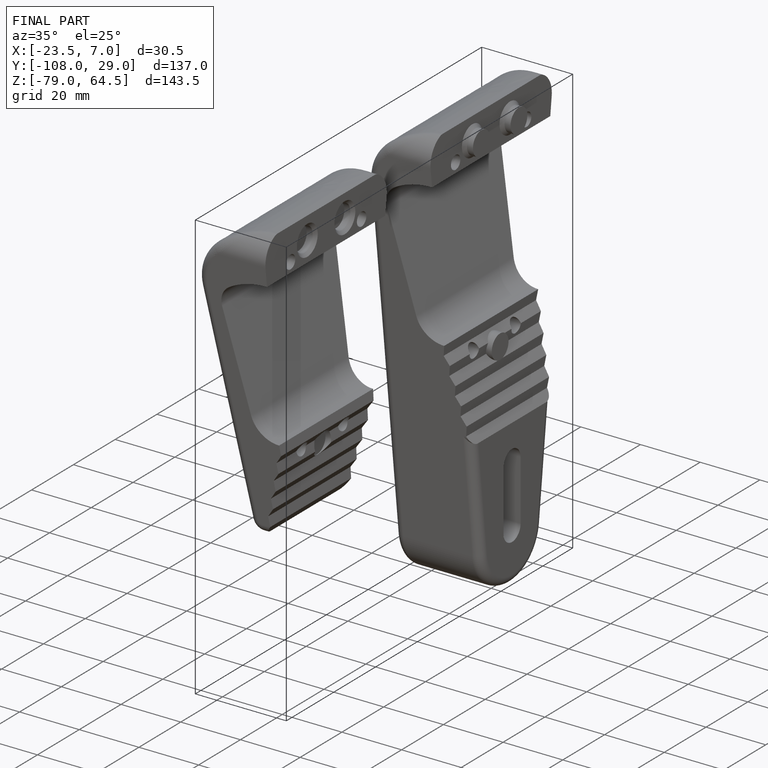
[diagram: finished part — iso view with bounding-box wireframe]
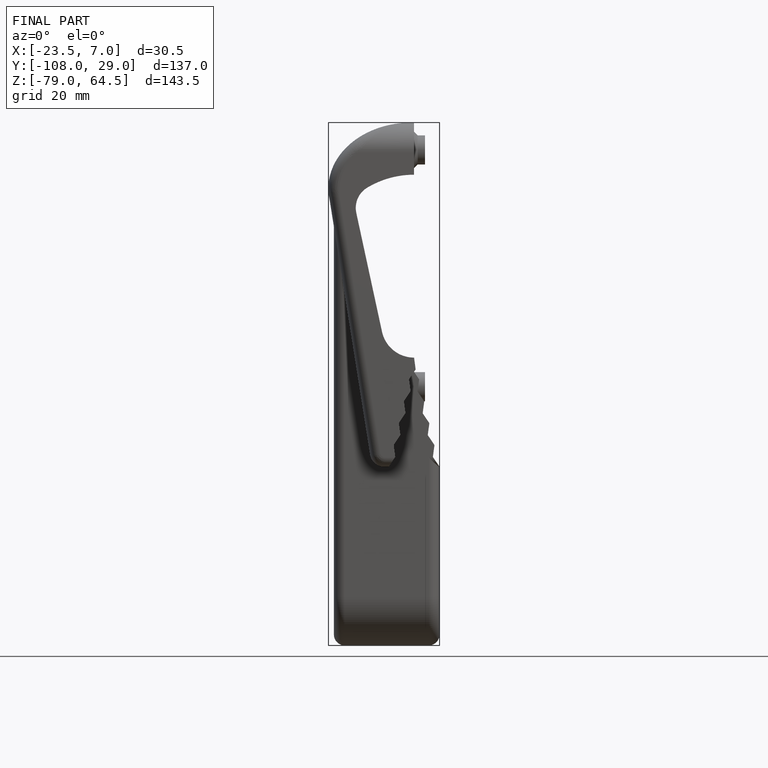
[diagram: finished part — front view with bounding-box wireframe]
